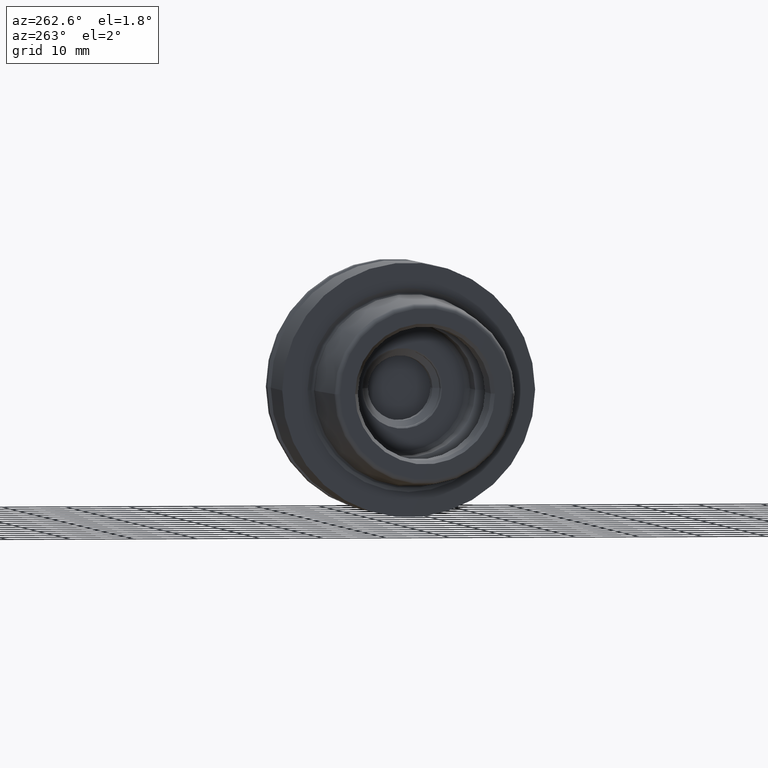
[diagram: clean part render]
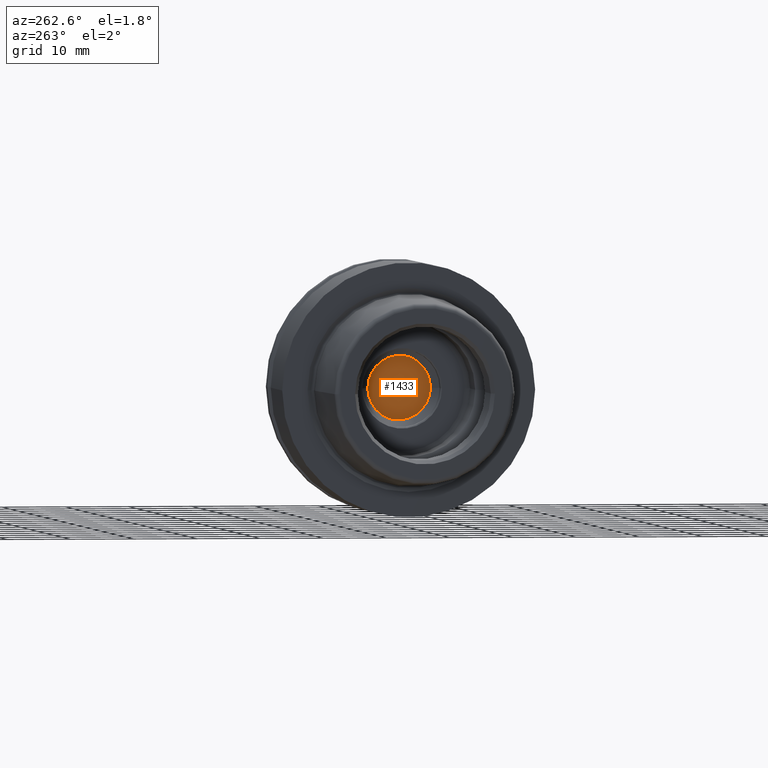
[diagram: same view with one face highlighted and labeled with its STEP entity id]
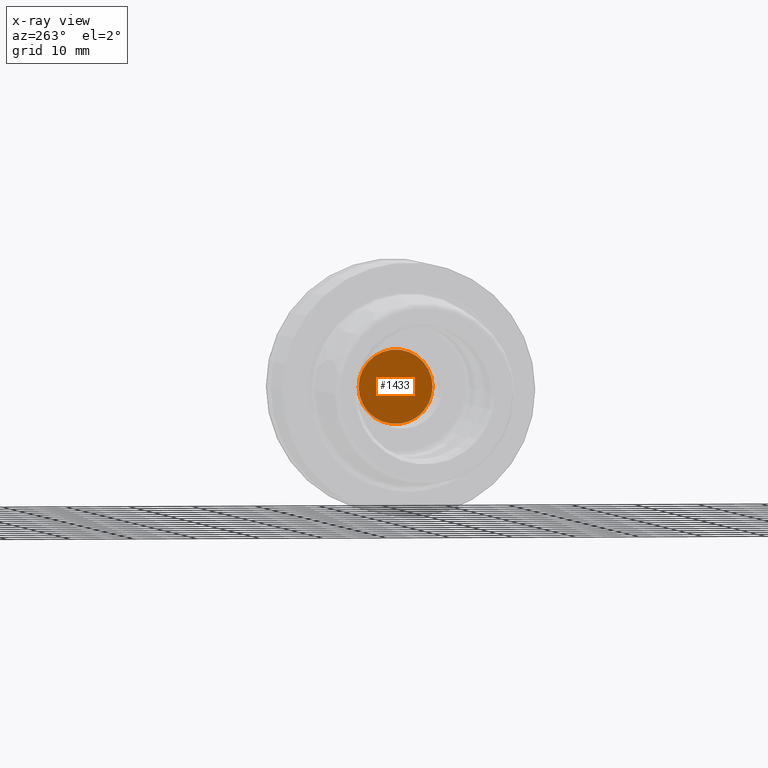
[diagram: x-ray of the same camera — body ghosted, the highlighted face saturated]
A machine part, auxiliary view. The second image highlights one B-rep face of the part: STEP entity #1433.
The next image is the same camera in x-ray: the body ghosted, the highlighted face saturated — about 0% of this face is hidden behind the body in this view.
In plain terms, the highlighted planar face has unit normal (1, 0, 0).
Its self-contained STEP definition (entity closure, byte-faithful):
#346=CARTESIAN_POINT('',(1.595E1,0.E0,0.E0));
#347=DIRECTION('',(1.E0,0.E0,0.E0));
#348=DIRECTION('',(0.E0,1.E0,0.E0));
#349=AXIS2_PLACEMENT_3D('',#346,#347,#348);
#351=CARTESIAN_POINT('',(1.595E1,0.E0,0.E0));
#352=DIRECTION('',(1.E0,0.E0,0.E0));
#353=DIRECTION('',(0.E0,-1.E0,0.E0));
#354=AXIS2_PLACEMENT_3D('',#351,#352,#353);
#864=CARTESIAN_POINT('',(1.595E1,5.85E0,0.E0));
#865=CARTESIAN_POINT('',(1.595E1,-5.85E0,0.E0));
#866=VERTEX_POINT('',#864);
#867=VERTEX_POINT('',#865);
#1423=CARTESIAN_POINT('',(1.595E1,0.E0,0.E0));
#1424=DIRECTION('',(1.E0,0.E0,0.E0));
#1425=DIRECTION('',(0.E0,-1.E0,0.E0));
#1426=AXIS2_PLACEMENT_3D('',#1423,#1424,#1425);
#1427=PLANE('',#1426);
#1428=ORIENTED_EDGE('',*,*,#1413,.T.);
#1430=ORIENTED_EDGE('',*,*,#1429,.T.);
#1431=EDGE_LOOP('',(#1428,#1430));
#1432=FACE_OUTER_BOUND('',#1431,.F.);
#1433=ADVANCED_FACE('',(#1432),#1427,.F.);
#350=CIRCLE('',#349,5.85E0);
#355=CIRCLE('',#354,5.85E0);
#1413=EDGE_CURVE('',#866,#867,#350,.T.);
#1429=EDGE_CURVE('',#867,#866,#355,.T.);